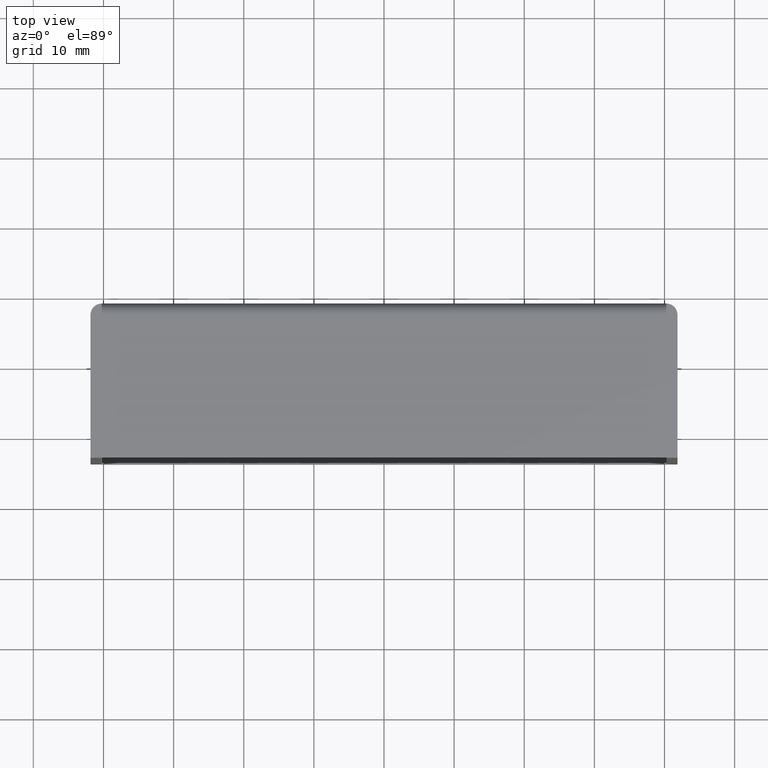
[diagram: clean part render]
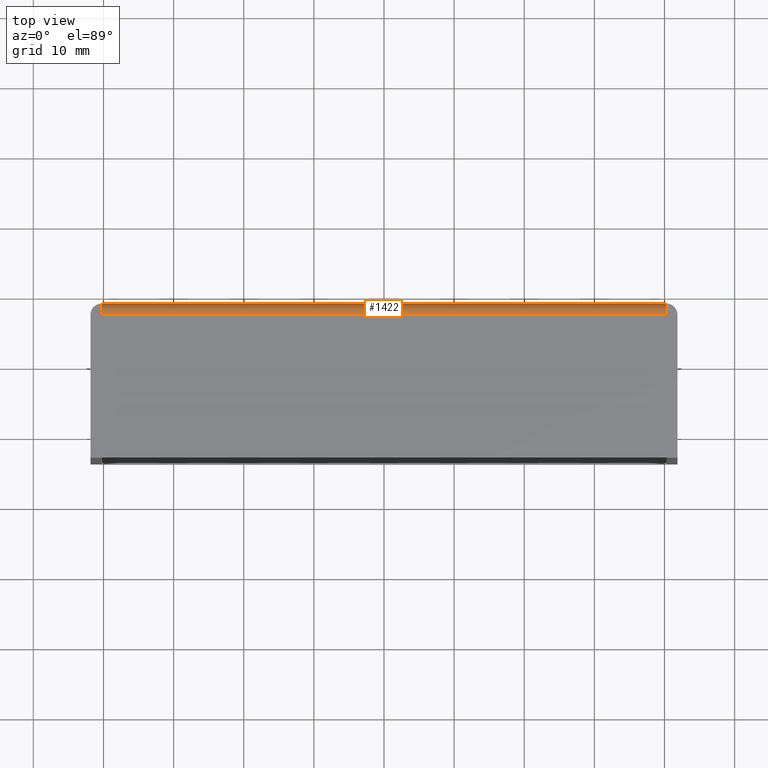
[diagram: same view with one face highlighted and labeled with its STEP entity id]
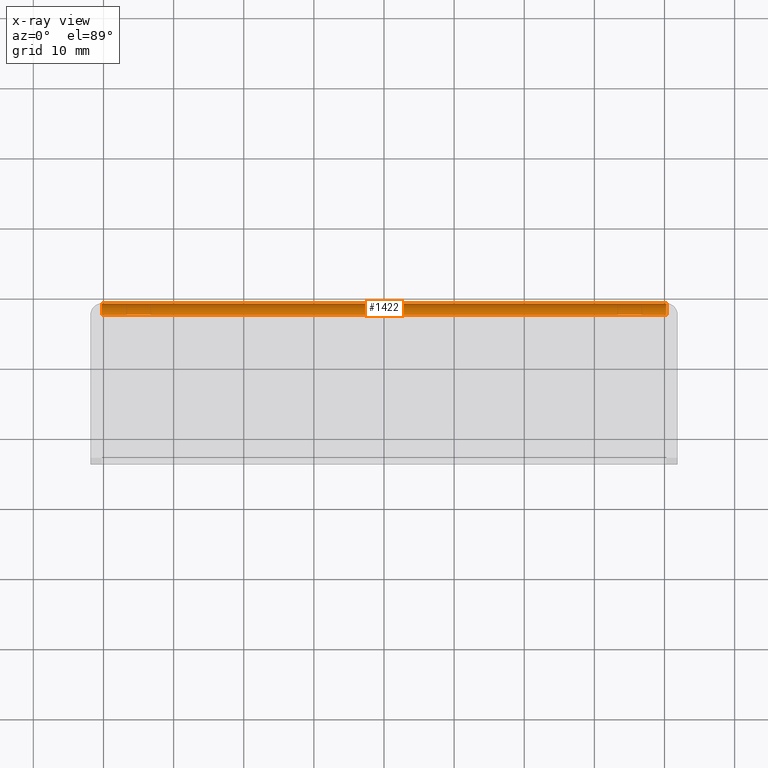
[diagram: x-ray of the same camera — body ghosted, the highlighted face saturated]
A machine part, top view. The second image highlights one B-rep face of the part: STEP entity #1422.
The next image is the same camera in x-ray: the body ghosted, the highlighted face saturated — about 0% of this face is hidden behind the body in this view.
In plain terms, the highlighted face is a freeform B-spline surface patch.
Its self-contained STEP definition (entity closure, byte-faithful):
#788=CARTESIAN_POINT('',(40.250000000000000,58.368048000000002,58.500000000000000));
#789=VERTEX_POINT('',#788);
#847=CARTESIAN_POINT('',(-40.250000000000000,58.368048000000002,58.500000000000000));
#848=VERTEX_POINT('',#847);
#1351=CARTESIAN_POINT('',(-40.250000000000000,56.768048000000000,60.100000000000001));
#1352=VERTEX_POINT('',#1351);
#1359=CARTESIAN_POINT('',(40.250000000000000,56.768048000000000,60.100000000000001));
#1360=VERTEX_POINT('',#1359);
#1366=CARTESIAN_POINT('',(40.250000000000000,56.768048000000000,60.100000000000001));
#1367=CARTESIAN_POINT('',(-40.250000000000000,56.768048000000000,60.100000000000001));
#1368=QUASI_UNIFORM_CURVE('',1,(#1366,#1367),.UNSPECIFIED.,.F.,.U.);
#1369=EDGE_CURVE('',#1360,#1352,#1368,.T.);
#1374=CARTESIAN_POINT('',(42.262500000000010,58.367499719960890,58.458116882707401));
#1375=CARTESIAN_POINT('',(-42.312812500000007,58.367499719960890,58.458116882707401));
#1376=CARTESIAN_POINT('',(42.262500000000003,58.413207121913594,60.203612141750597));
#1377=CARTESIAN_POINT('',(-42.312812500000014,58.413207121913594,60.203612141750597));
#1378=CARTESIAN_POINT('',(42.262500000000010,56.670370336744227,60.097015677475000));
#1379=CARTESIAN_POINT('',(-42.312812500000007,56.670370336744227,60.097015677475000));
#1387=(BOUNDED_SURFACE()B_SPLINE_SURFACE(1,2,((#1374,#1376,#1378),(#1375,#1377,#1379)),.UNSPECIFIED.,.F.,.F.,.U.)B_SPLINE_SURFACE_WITH_KNOTS((2,2),(3,3),(0.0,84.575312500000024),(0.0,2.816067397707733),.UNSPECIFIED.)GEOMETRIC_REPRESENTATION_ITEM()RATIONAL_B_SPLINE_SURFACE(((1.0,0.675590207615660,1.0),(1.0,0.675590207615660,1.0)))REPRESENTATION_ITEM('')SURFACE());
#1388=CARTESIAN_POINT('',(-40.250000000000000,58.368048000000002,58.500000000000000));
#1389=CARTESIAN_POINT('',(-40.250000000000000,58.368047999999995,60.099999999999980));
#1390=CARTESIAN_POINT('',(-40.250000000000000,56.768048000000000,60.100000000000001));
#1398=(BOUNDED_CURVE()B_SPLINE_CURVE(2,(#1388,#1389,#1390),.UNSPECIFIED.,.F.,.U.)CURVE()GEOMETRIC_REPRESENTATION_ITEM()QUASI_UNIFORM_CURVE()RATIONAL_B_SPLINE_CURVE((1.0,0.707106781186548,1.0))REPRESENTATION_ITEM(''));
#1399=EDGE_CURVE('',#848,#1352,#1398,.T.);
#1400=ORIENTED_EDGE('',*,*,#1399,.T.);
#1401=ORIENTED_EDGE('',*,*,#1369,.F.);
#1402=CARTESIAN_POINT('',(40.250000000000000,58.368048000000002,58.500000000000000));
#1403=CARTESIAN_POINT('',(40.250000000000000,58.368047999999995,60.099999999999980));
#1404=CARTESIAN_POINT('',(40.250000000000000,56.768048000000000,60.100000000000001));
#1412=(BOUNDED_CURVE()B_SPLINE_CURVE(2,(#1402,#1403,#1404),.UNSPECIFIED.,.F.,.U.)CURVE()GEOMETRIC_REPRESENTATION_ITEM()QUASI_UNIFORM_CURVE()RATIONAL_B_SPLINE_CURVE((1.0,0.707106781186548,1.0))REPRESENTATION_ITEM(''));
#1413=EDGE_CURVE('',#789,#1360,#1412,.T.);
#1414=ORIENTED_EDGE('',*,*,#1413,.F.);
#1415=CARTESIAN_POINT('',(40.250000000000000,58.368048000000002,58.500000000000000));
#1416=CARTESIAN_POINT('',(-40.250000000000000,58.368048000000002,58.500000000000000));
#1417=QUASI_UNIFORM_CURVE('',1,(#1415,#1416),.UNSPECIFIED.,.F.,.U.);
#1418=EDGE_CURVE('',#789,#848,#1417,.T.);
#1419=ORIENTED_EDGE('',*,*,#1418,.T.);
#1420=EDGE_LOOP('',(#1400,#1401,#1414,#1419));
#1421=FACE_OUTER_BOUND('',#1420,.T.);
#1422=ADVANCED_FACE('',(#1421),#1387,.T.);